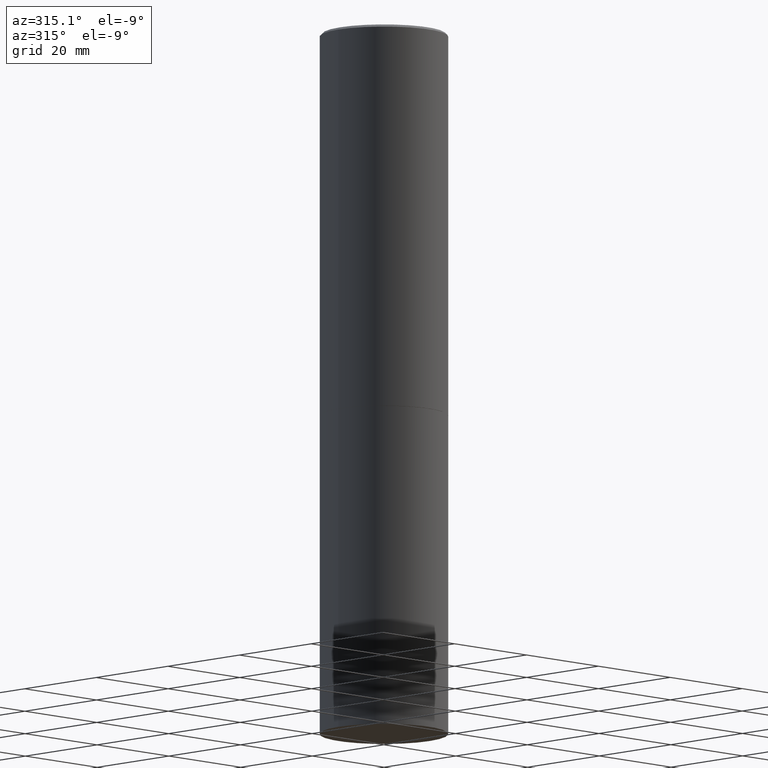
[diagram: clean part render]
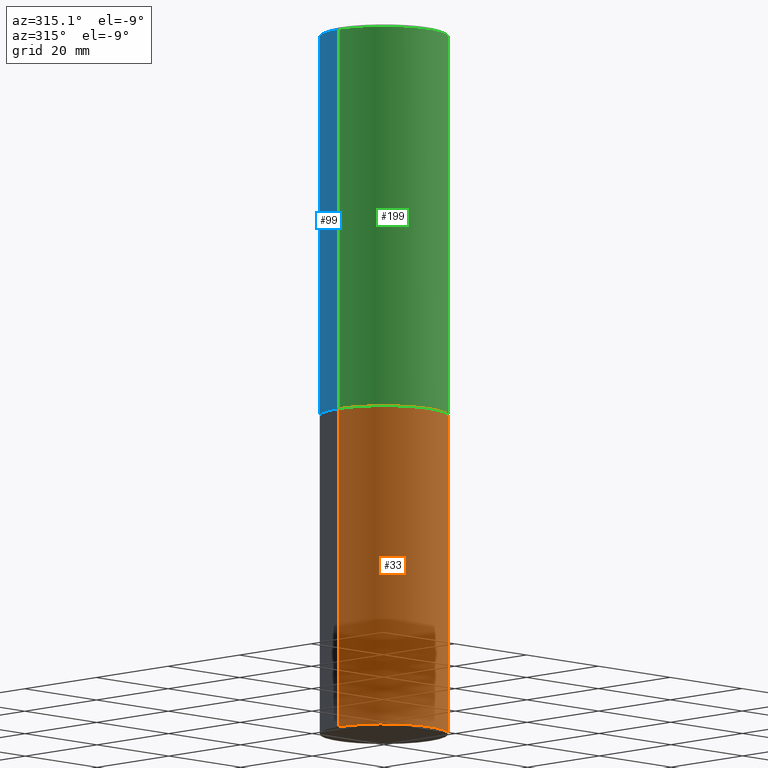
[diagram: same view with three faces highlighted in distinct colors, each labeled with its STEP entity id]
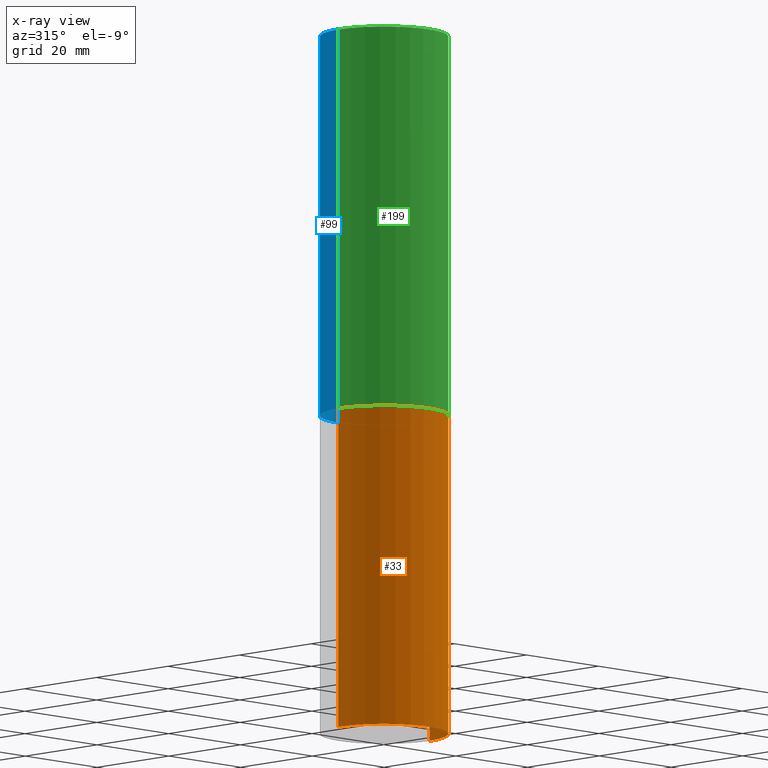
[diagram: x-ray of the same camera — body ghosted, the three highlighted faces saturated]
A machine part, auxiliary view with three faces highlighted in distinct colors.
The next image is the same camera in x-ray (body ghosted, the three faces saturated) — at least one of them is partly hidden behind the body in this view.
Their STEP definitions:

[orange] entity #33 — the highlighted cylindrical surface (partial cylindrical patch) has radius 12.7 mm, axis along (-0, 0, 1).
#1 = ORIENTED_EDGE ( 'NONE', *, *, #290, .T. ) ;
#17 = CARTESIAN_POINT ( 'NONE',  ( 0.5000000000000000000, -2.269462870248043307E-14, -5.500000000000000000 ) ) ;
#22 = CARTESIAN_POINT ( 'NONE',  ( -0.5000000000000000000, 3.552713678800500929E-15, -2.459467545127452891E-29 ) ) ;
#33 = ADVANCED_FACE ( 'NONE', ( #37 ), #361, .T. ) ;
#37 = FACE_OUTER_BOUND ( 'NONE', #357, .T. ) ;
#38 = VECTOR ( 'NONE', #88, 39.37007874015748143 ) ;
#41 = ORIENTED_EDGE ( 'NONE', *, *, #354, .F. ) ;
#45 = VERTEX_POINT ( 'NONE', #17 ) ;
#78 = DIRECTION ( 'NONE',  ( 1.000000000000000000, -6.982962677686266711E-15, 4.876176775795935793E-29 ) ) ;
#83 = CARTESIAN_POINT ( 'NONE',  ( -0.5000000000000000000, -1.128608201128286632E-14, -5.500000000000000000 ) ) ;
#84 = CIRCLE ( 'NONE', #334, 0.5000000000000000000 ) ;
#86 = ORIENTED_EDGE ( 'NONE', *, *, #269, .T. ) ;
#88 = DIRECTION ( 'NONE',  ( -2.445468806185136877E-29, 3.491481338843145188E-15, 1.000000000000000000 ) ) ;
#106 = ORIENTED_EDGE ( 'NONE', *, *, #225, .F. ) ;
#107 = DIRECTION ( 'NONE',  ( -2.445468806185136597E-29, 3.491481338843145583E-15, 1.000000000000000000 ) ) ;
#141 = DIRECTION ( 'NONE',  ( -2.445468806185136597E-29, 3.491481338843145583E-15, 1.000000000000000000 ) ) ;
#143 = VERTEX_POINT ( 'NONE', #83 ) ;
#145 = CARTESIAN_POINT ( 'NONE',  ( 1.345007843401824904E-28, -1.920314736363729972E-14, -5.500000000000000000 ) ) ;
#190 = CIRCLE ( 'NONE', #288, 0.5000000000000000000 ) ;
#192 = DIRECTION ( 'NONE',  ( 1.000000000000000000, -6.982962677686266711E-15, 0.000000000000000000 ) ) ;
#198 = VECTOR ( 'NONE', #248, 39.37007874015748143 ) ;
#200 = CARTESIAN_POINT ( 'NONE',  ( -0.5000000000000000000, -1.128608201128286632E-14, -2.999999999999999556 ) ) ;
#215 = CARTESIAN_POINT ( 'NONE',  ( 0.000000000000000000, 0.000000000000000000, 0.000000000000000000 ) ) ;
#219 = CARTESIAN_POINT ( 'NONE',  ( 7.336406418555408669E-29, -1.047444401652943478E-14, -2.999999999999999556 ) ) ;
#225 = EDGE_CURVE ( 'NONE', #302, #325, #84, .T. ) ;
#230 = LINE ( 'NONE', #344, #38 ) ;
#248 = DIRECTION ( 'NONE',  ( -2.445468806185136877E-29, 3.491481338843145188E-15, 1.000000000000000000 ) ) ;
#254 = DIRECTION ( 'NONE',  ( -2.445468806185136597E-29, 3.491481338843145583E-15, 1.000000000000000000 ) ) ;
#257 = CARTESIAN_POINT ( 'NONE',  ( 0.5000000000000000000, -1.396592535537256813E-14, -2.999999999999999556 ) ) ;
#269 = EDGE_CURVE ( 'NONE', #143, #45, #190, .T. ) ;
#288 = AXIS2_PLACEMENT_3D ( 'NONE', #145, #254, #304 ) ;
#290 = EDGE_CURVE ( 'NONE', #45, #325, #230, .T. ) ;
#299 = LINE ( 'NONE', #22, #198 ) ;
#302 = VERTEX_POINT ( 'NONE', #200 ) ;
#304 = DIRECTION ( 'NONE',  ( 1.000000000000000000, -6.982962677686262766E-15, 0.000000000000000000 ) ) ;
#321 = AXIS2_PLACEMENT_3D ( 'NONE', #215, #107, #78 ) ;
#325 = VERTEX_POINT ( 'NONE', #257 ) ;
#334 = AXIS2_PLACEMENT_3D ( 'NONE', #219, #141, #192 ) ;
#344 = CARTESIAN_POINT ( 'NONE',  ( 0.5000000000000000000, -3.491481338843133355E-15, 2.438088387897967896E-29 ) ) ;
#354 = EDGE_CURVE ( 'NONE', #143, #302, #299, .T. ) ;
#357 = EDGE_LOOP ( 'NONE', ( #41, #86, #1, #106 ) ) ;
#361 = CYLINDRICAL_SURFACE ( 'NONE', #321, 0.5000000000000000000 ) ;

[blue] entity #99 — the highlighted cylindrical surface (partial cylindrical patch) has radius 12.7 mm, axis along (-0, 0, 1).
#2 = ORIENTED_EDGE ( 'NONE', *, *, #180, .F. ) ;
#14 = EDGE_CURVE ( 'NONE', #275, #358, #294, .T. ) ;
#18 = VERTEX_POINT ( 'NONE', #266 ) ;
#27 = DIRECTION ( 'NONE',  ( -2.445468806185136597E-29, 3.491481338843145583E-15, 1.000000000000000000 ) ) ;
#29 = LINE ( 'NONE', #308, #162 ) ;
#43 = CARTESIAN_POINT ( 'NONE',  ( 0.4999999999999998335, -3.491481338843132566E-15, 2.438088387897967336E-29 ) ) ;
#47 = CIRCLE ( 'NONE', #256, 0.4999999999999997224 ) ;
#52 = VERTEX_POINT ( 'NONE', #297 ) ;
#56 = EDGE_CURVE ( 'NONE', #275, #52, #102, .T. ) ;
#65 = CARTESIAN_POINT ( 'NONE',  ( 0.000000000000000000, 0.000000000000000000, 0.000000000000000000 ) ) ;
#72 = DIRECTION ( 'NONE',  ( -2.445468806185136597E-29, 3.491481338843145583E-15, 1.000000000000000000 ) ) ;
#97 = AXIS2_PLACEMENT_3D ( 'NONE', #65, #27, #123 ) ;
#99 = ADVANCED_FACE ( 'NONE', ( #244 ), #273, .T. ) ;
#102 = CIRCLE ( 'NONE', #296, 0.5000000000000000000 ) ;
#104 = ORIENTED_EDGE ( 'NONE', *, *, #14, .F. ) ;
#111 = ORIENTED_EDGE ( 'NONE', *, *, #56, .T. ) ;
#119 = CARTESIAN_POINT ( 'NONE',  ( 0.5000000000000000000, -1.396243387403372828E-14, -2.999000000000000554 ) ) ;
#123 = DIRECTION ( 'NONE',  ( 1.000000000000000000, -6.982962677686267499E-15, 4.876176775795936353E-29 ) ) ;
#142 = DIRECTION ( 'NONE',  ( 1.000000000000000000, -6.982962677686266711E-15, 0.000000000000000000 ) ) ;
#159 = EDGE_LOOP ( 'NONE', ( #111, #339, #2, #104 ) ) ;
#162 = VECTOR ( 'NONE', #284, 39.37007874015748143 ) ;
#180 = EDGE_CURVE ( 'NONE', #358, #18, #47, .T. ) ;
#213 = CARTESIAN_POINT ( 'NONE',  ( 7.333960949749226429E-29, -1.047095253519059492E-14, -2.999000000000000554 ) ) ;
#228 = VECTOR ( 'NONE', #356, 39.37007874015748143 ) ;
#232 = CARTESIAN_POINT ( 'NONE',  ( 4.890937612370306439E-31, -6.982962677686338448E-17, -0.02000000000000013572 ) ) ;
#234 = EDGE_CURVE ( 'NONE', #52, #18, #29, .T. ) ;
#244 = FACE_OUTER_BOUND ( 'NONE', #159, .T. ) ;
#256 = AXIS2_PLACEMENT_3D ( 'NONE', #232, #279, #142 ) ;
#266 = CARTESIAN_POINT ( 'NONE',  ( -0.4999999999999997224, 3.421651712066268085E-15, -0.02000000000000013572 ) ) ;
#271 = DIRECTION ( 'NONE',  ( 1.000000000000000000, -6.982962677686266711E-15, 0.000000000000000000 ) ) ;
#273 = CYLINDRICAL_SURFACE ( 'NONE', #97, 0.4999999999999998335 ) ;
#275 = VERTEX_POINT ( 'NONE', #119 ) ;
#279 = DIRECTION ( 'NONE',  ( -2.445468806185136597E-29, 3.491481338843145583E-15, 1.000000000000000000 ) ) ;
#284 = DIRECTION ( 'NONE',  ( -2.445468806185136877E-29, 3.491481338843145188E-15, 1.000000000000000000 ) ) ;
#294 = LINE ( 'NONE', #43, #228 ) ;
#296 = AXIS2_PLACEMENT_3D ( 'NONE', #213, #72, #271 ) ;
#297 = CARTESIAN_POINT ( 'NONE',  ( -0.5000000000000000000, -1.717677402183226998E-15, -2.999000000000000554 ) ) ;
#303 = CARTESIAN_POINT ( 'NONE',  ( 0.4999999999999997224, -3.500078625662627502E-15, -0.02000000000000013572 ) ) ;
#308 = CARTESIAN_POINT ( 'NONE',  ( -0.4999999999999998335, 3.552713678800499746E-15, -2.459467545127452330E-29 ) ) ;
#339 = ORIENTED_EDGE ( 'NONE', *, *, #234, .T. ) ;
#356 = DIRECTION ( 'NONE',  ( -2.445468806185136877E-29, 3.491481338843145188E-15, 1.000000000000000000 ) ) ;
#358 = VERTEX_POINT ( 'NONE', #303 ) ;

[green] entity #199 — the highlighted cylindrical surface (partial cylindrical patch) has radius 12.7 mm, axis along (-0, 0, 1).
#7 = CIRCLE ( 'NONE', #155, 0.5000000000000000000 ) ;
#14 = EDGE_CURVE ( 'NONE', #275, #358, #294, .T. ) ;
#18 = VERTEX_POINT ( 'NONE', #266 ) ;
#25 = DIRECTION ( 'NONE',  ( 1.000000000000000000, -6.982962677686266711E-15, 0.000000000000000000 ) ) ;
#29 = LINE ( 'NONE', #308, #162 ) ;
#43 = CARTESIAN_POINT ( 'NONE',  ( 0.4999999999999998335, -3.491481338843132566E-15, 2.438088387897967336E-29 ) ) ;
#44 = ORIENTED_EDGE ( 'NONE', *, *, #14, .T. ) ;
#52 = VERTEX_POINT ( 'NONE', #297 ) ;
#82 = EDGE_LOOP ( 'NONE', ( #355, #265, #44, #227 ) ) ;
#119 = CARTESIAN_POINT ( 'NONE',  ( 0.5000000000000000000, -1.396243387403372828E-14, -2.999000000000000554 ) ) ;
#125 = AXIS2_PLACEMENT_3D ( 'NONE', #166, #193, #301 ) ;
#135 = DIRECTION ( 'NONE',  ( -2.445468806185136597E-29, 3.491481338843145583E-15, 1.000000000000000000 ) ) ;
#155 = AXIS2_PLACEMENT_3D ( 'NONE', #281, #224, #25 ) ;
#162 = VECTOR ( 'NONE', #284, 39.37007874015748143 ) ;
#166 = CARTESIAN_POINT ( 'NONE',  ( 0.000000000000000000, 0.000000000000000000, 0.000000000000000000 ) ) ;
#182 = DIRECTION ( 'NONE',  ( 1.000000000000000000, -6.982962677686266711E-15, 0.000000000000000000 ) ) ;
#193 = DIRECTION ( 'NONE',  ( -2.445468806185136597E-29, 3.491481338843145583E-15, 1.000000000000000000 ) ) ;
#199 = ADVANCED_FACE ( 'NONE', ( #220 ), #333, .T. ) ;
#220 = FACE_OUTER_BOUND ( 'NONE', #82, .T. ) ;
#224 = DIRECTION ( 'NONE',  ( -2.445468806185136597E-29, 3.491481338843145583E-15, 1.000000000000000000 ) ) ;
#227 = ORIENTED_EDGE ( 'NONE', *, *, #330, .F. ) ;
#228 = VECTOR ( 'NONE', #356, 39.37007874015748143 ) ;
#234 = EDGE_CURVE ( 'NONE', #52, #18, #29, .T. ) ;
#263 = EDGE_CURVE ( 'NONE', #52, #275, #7, .T. ) ;
#265 = ORIENTED_EDGE ( 'NONE', *, *, #263, .T. ) ;
#266 = CARTESIAN_POINT ( 'NONE',  ( -0.4999999999999997224, 3.421651712066268085E-15, -0.02000000000000013572 ) ) ;
#275 = VERTEX_POINT ( 'NONE', #119 ) ;
#281 = CARTESIAN_POINT ( 'NONE',  ( 7.333960949749226429E-29, -1.047095253519059492E-14, -2.999000000000000554 ) ) ;
#284 = DIRECTION ( 'NONE',  ( -2.445468806185136877E-29, 3.491481338843145188E-15, 1.000000000000000000 ) ) ;
#294 = LINE ( 'NONE', #43, #228 ) ;
#297 = CARTESIAN_POINT ( 'NONE',  ( -0.5000000000000000000, -1.717677402183226998E-15, -2.999000000000000554 ) ) ;
#301 = DIRECTION ( 'NONE',  ( 1.000000000000000000, -6.982962677686267499E-15, 4.876176775795936353E-29 ) ) ;
#303 = CARTESIAN_POINT ( 'NONE',  ( 0.4999999999999997224, -3.500078625662627502E-15, -0.02000000000000013572 ) ) ;
#308 = CARTESIAN_POINT ( 'NONE',  ( -0.4999999999999998335, 3.552713678800499746E-15, -2.459467545127452330E-29 ) ) ;
#324 = CARTESIAN_POINT ( 'NONE',  ( 4.890937612370306439E-31, -6.982962677686338448E-17, -0.02000000000000013572 ) ) ;
#330 = EDGE_CURVE ( 'NONE', #18, #358, #359, .T. ) ;
#333 = CYLINDRICAL_SURFACE ( 'NONE', #125, 0.4999999999999998335 ) ;
#353 = AXIS2_PLACEMENT_3D ( 'NONE', #324, #135, #182 ) ;
#355 = ORIENTED_EDGE ( 'NONE', *, *, #234, .F. ) ;
#356 = DIRECTION ( 'NONE',  ( -2.445468806185136877E-29, 3.491481338843145188E-15, 1.000000000000000000 ) ) ;
#358 = VERTEX_POINT ( 'NONE', #303 ) ;
#359 = CIRCLE ( 'NONE', #353, 0.4999999999999997224 ) ;